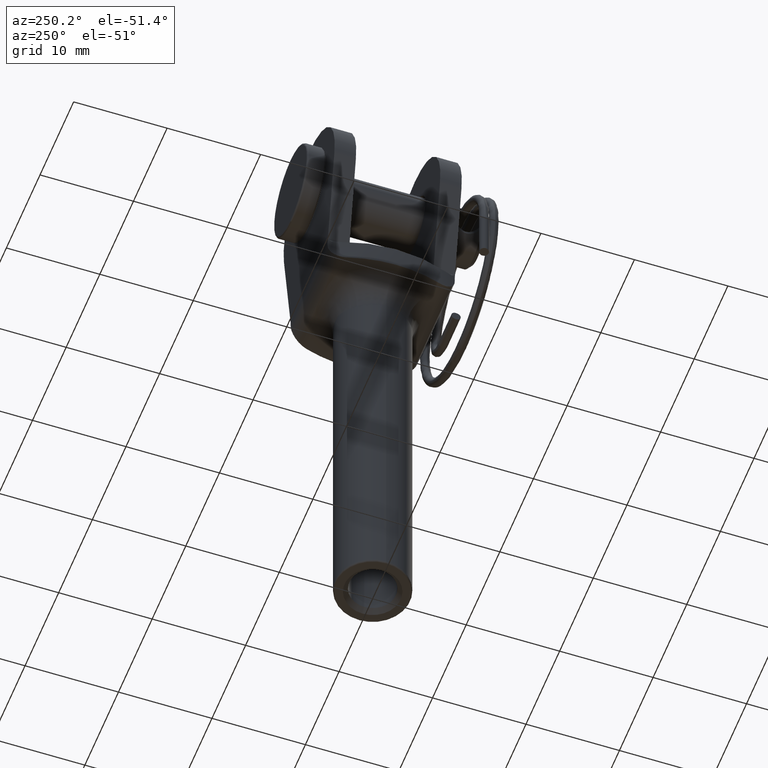
[diagram: clean part render]
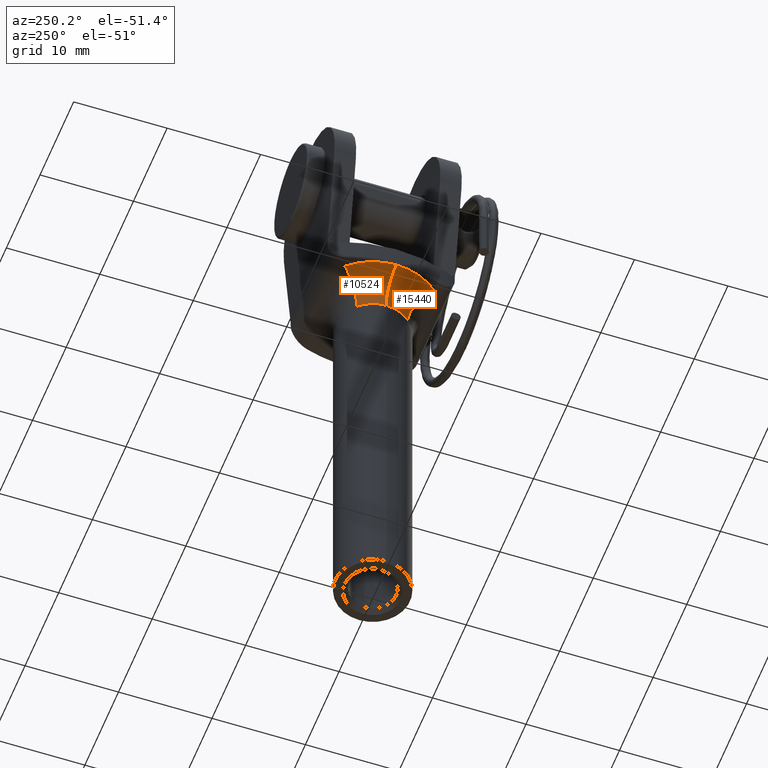
[diagram: same view with one multi-face feature highlighted, each face labeled with its STEP entity id]
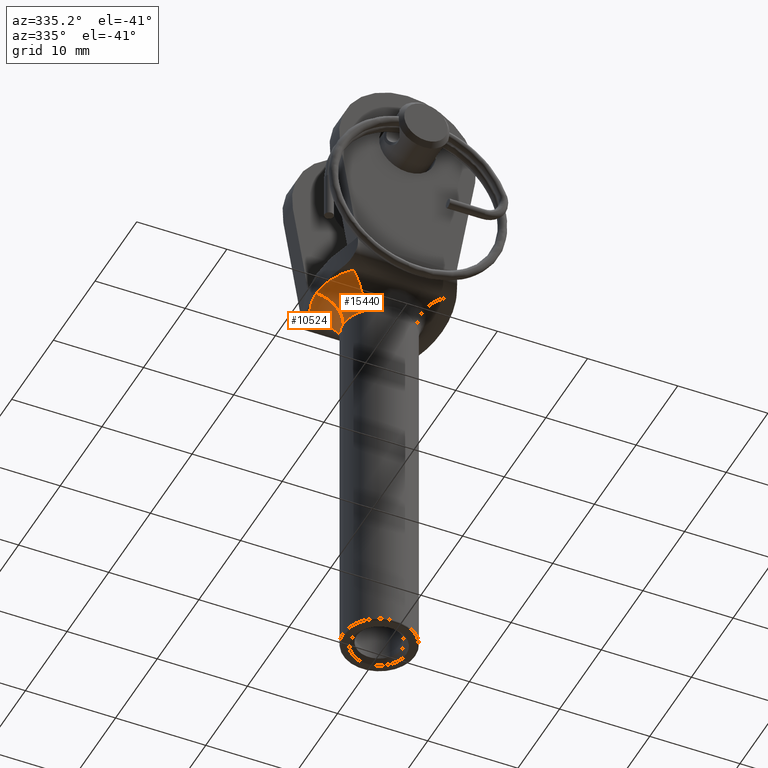
[diagram: same view with one multi-face feature highlighted, each face labeled with its STEP entity id]
A machine part, auxiliary view. The highlighted faces form ONE feature: a constant-radius fillet chain: 2 tangent blend faces with common blend radius 3 mm. The faces share edges in the B-rep.
A second angle (auxiliary view) of the same feature is appended — it is thin or edge-on in the first view.
Their STEP definitions:
[1] entity #10524 (Torus):
#1276 = AXIS2_PLACEMENT_3D ( 'NONE', #14137, #12699, #19155 ) ;
#1630 = FACE_OUTER_BOUND ( 'NONE', #11592, .T. ) ;
#2216 = CARTESIAN_POINT ( 'NONE',  ( 3.673940397442057400E-016, 0.0000000000000000000, -2.500000000000000000 ) ) ;
#3215 = CIRCLE ( 'NONE', #16683, 7.000000000000000000 ) ;
#3428 = CIRCLE ( 'NONE', #1276, 3.000000000000000000 ) ;
#3541 = AXIS2_PLACEMENT_3D ( 'NONE', #6651, #3808, #18713 ) ;
#3808 = DIRECTION ( 'NONE',  ( -1.224646799147353200E-016, 0.0000000000000000000, -1.000000000000000000 ) ) ;
#3839 = CARTESIAN_POINT ( 'NONE',  ( -4.000000000000000000, 4.898587196589412800E-016, -5.499999999999997300 ) ) ;
#4581 = CARTESIAN_POINT ( 'NONE',  ( -2.911483246367314100, 2.742857142857142900, -5.499999999999998200 ) ) ;
#4775 = ORIENTED_EDGE ( 'NONE', *, *, #17436, .F. ) ;
#5171 = DIRECTION ( 'NONE',  ( 1.224646799147353200E-016, -0.0000000000000000000, 1.000000000000000000 ) ) ;
#5758 = VERTEX_POINT ( 'NONE', #15797 ) ;
#5952 = EDGE_CURVE ( 'NONE', #15156, #12419, #15525, .T. ) ;
#6290 = VERTEX_POINT ( 'NONE', #3839 ) ;
#6651 = CARTESIAN_POINT ( 'NONE',  ( 0.0000000000000000000, 0.0000000000000000000, -5.499999999999998200 ) ) ;
#6678 = DIRECTION ( 'NONE',  ( -1.000000000000000000, 0.0000000000000000000, 2.168404344971008900E-016 ) ) ;
#8172 = DIRECTION ( 'NONE',  ( -1.224646799147353200E-016, 0.0000000000000000000, -1.000000000000000000 ) ) ;
#8349 = CIRCLE ( 'NONE', #17383, 4.000000000000000000 ) ;
#9623 = CARTESIAN_POINT ( 'NONE',  ( -5.095095681142799600, 4.799999999999999800, -2.499999999999999600 ) ) ;
#9994 = EDGE_CURVE ( 'NONE', #6290, #12419, #8349, .T. ) ;
#10524 = ADVANCED_FACE ( 'NONE', ( #1630 ), #19711, .F. ) ;
#11592 = EDGE_LOOP ( 'NONE', ( #12990, #12584, #4775, #13604 ) ) ;
#11599 = DIRECTION ( 'NONE',  ( 0.6857142857142857200, 0.7278708115918285400, -0.0000000000000000000 ) ) ;
#11969 = AXIS2_PLACEMENT_3D ( 'NONE', #17571, #11599, #19436 ) ;
#12419 = VERTEX_POINT ( 'NONE', #4581 ) ;
#12584 = ORIENTED_EDGE ( 'NONE', *, *, #19316, .T. ) ;
#12699 = DIRECTION ( 'NONE',  ( -0.0000000000000000000, -1.000000000000000000, 0.0000000000000000000 ) ) ;
#12910 = DIRECTION ( 'NONE',  ( -1.000000000000000000, -1.776356839400250500E-015, 1.239088197126290800E-016 ) ) ;
#12990 = ORIENTED_EDGE ( 'NONE', *, *, #9994, .F. ) ;
#13604 = ORIENTED_EDGE ( 'NONE', *, *, #5952, .T. ) ;
#14137 = CARTESIAN_POINT ( 'NONE',  ( -7.000000000000000000, 0.0000000000000000000, -5.499999999999997300 ) ) ;
#15156 = VERTEX_POINT ( 'NONE', #9623 ) ;
#15525 = CIRCLE ( 'NONE', #11969, 3.000000000000000400 ) ;
#15797 = CARTESIAN_POINT ( 'NONE',  ( -7.000000000000000900, 0.0000000000000000000, -2.499999999999999100 ) ) ;
#15838 = CARTESIAN_POINT ( 'NONE',  ( 0.0000000000000000000, 0.0000000000000000000, -5.499999999999998200 ) ) ;
#16683 = AXIS2_PLACEMENT_3D ( 'NONE', #2216, #5171, #12910 ) ;
#17383 = AXIS2_PLACEMENT_3D ( 'NONE', #15838, #8172, #6678 ) ;
#17436 = EDGE_CURVE ( 'NONE', #15156, #5758, #3215, .T. ) ;
#17571 = CARTESIAN_POINT ( 'NONE',  ( -5.095095681142799600, 4.799999999999999800, -5.500000000000000000 ) ) ;
#18713 = DIRECTION ( 'NONE',  ( -1.000000000000000000, 0.0000000000000000000, 1.224646799147353200E-016 ) ) ;
#19155 = DIRECTION ( 'NONE',  ( 0.0000000000000000000, 0.0000000000000000000, -1.000000000000000000 ) ) ;
#19316 = EDGE_CURVE ( 'NONE', #6290, #5758, #3428, .T. ) ;
#19436 = DIRECTION ( 'NONE',  ( -0.7278708115918285400, 0.6857142857142857200, 0.0000000000000000000 ) ) ;
#19711 = TOROIDAL_SURFACE ( 'NONE', #3541, 7.000000000000000000, 3.000000000000000000 ) ;
[2] entity #15440 (Torus):
#945 = CARTESIAN_POINT ( 'NONE',  ( 3.673940397442057400E-016, 0.0000000000000000000, -2.500000000000000000 ) ) ;
#1007 = AXIS2_PLACEMENT_3D ( 'NONE', #945, #2618, #4055 ) ;
#1276 = AXIS2_PLACEMENT_3D ( 'NONE', #14137, #12699, #19155 ) ;
#1855 = ORIENTED_EDGE ( 'NONE', *, *, #19316, .F. ) ;
#2618 = DIRECTION ( 'NONE',  ( 1.224646799147353200E-016, -0.0000000000000000000, 1.000000000000000000 ) ) ;
#2955 = ORIENTED_EDGE ( 'NONE', *, *, #16849, .F. ) ;
#3428 = CIRCLE ( 'NONE', #1276, 3.000000000000000000 ) ;
#3839 = CARTESIAN_POINT ( 'NONE',  ( -4.000000000000000000, 4.898587196589412800E-016, -5.499999999999997300 ) ) ;
#4055 = DIRECTION ( 'NONE',  ( -1.000000000000000000, 0.0000000000000000000, 1.239088197126290800E-016 ) ) ;
#4161 = DIRECTION ( 'NONE',  ( -0.6857142857142857200, 0.7278708115918285400, 0.0000000000000000000 ) ) ;
#4958 = ORIENTED_EDGE ( 'NONE', *, *, #13386, .F. ) ;
#5758 = VERTEX_POINT ( 'NONE', #15797 ) ;
#6290 = VERTEX_POINT ( 'NONE', #3839 ) ;
#6850 = DIRECTION ( 'NONE',  ( -1.000000000000000000, 0.0000000000000000000, 1.224646799147353200E-016 ) ) ;
#7265 = AXIS2_PLACEMENT_3D ( 'NONE', #12867, #11421, #6850 ) ;
#9105 = ORIENTED_EDGE ( 'NONE', *, *, #17074, .F. ) ;
#10899 = CARTESIAN_POINT ( 'NONE',  ( -5.095095681142799600, -4.799999999999999800, -2.499999999999999100 ) ) ;
#10918 = CIRCLE ( 'NONE', #12509, 3.000000000000000400 ) ;
#11258 = AXIS2_PLACEMENT_3D ( 'NONE', #13094, #16042, #16107 ) ;
#11421 = DIRECTION ( 'NONE',  ( -1.224646799147353200E-016, 0.0000000000000000000, -1.000000000000000000 ) ) ;
#11988 = VERTEX_POINT ( 'NONE', #13888 ) ;
#12509 = AXIS2_PLACEMENT_3D ( 'NONE', #16281, #4161, #13388 ) ;
#12699 = DIRECTION ( 'NONE',  ( -0.0000000000000000000, -1.000000000000000000, 0.0000000000000000000 ) ) ;
#12867 = CARTESIAN_POINT ( 'NONE',  ( 0.0000000000000000000, 0.0000000000000000000, -5.499999999999998200 ) ) ;
#13094 = CARTESIAN_POINT ( 'NONE',  ( 0.0000000000000000000, 0.0000000000000000000, -5.499999999999998200 ) ) ;
#13386 = EDGE_CURVE ( 'NONE', #19697, #11988, #10918, .T. ) ;
#13388 = DIRECTION ( 'NONE',  ( -0.7278708115918285400, -0.6857142857142857200, 0.0000000000000000000 ) ) ;
#13888 = CARTESIAN_POINT ( 'NONE',  ( -2.911483246367314100, -2.742857142857142900, -5.499999999999998200 ) ) ;
#13925 = CIRCLE ( 'NONE', #1007, 7.000000000000000000 ) ;
#14137 = CARTESIAN_POINT ( 'NONE',  ( -7.000000000000000000, 0.0000000000000000000, -5.499999999999997300 ) ) ;
#15038 = EDGE_LOOP ( 'NONE', ( #1855, #2955, #4958, #9105 ) ) ;
#15440 = ADVANCED_FACE ( 'NONE', ( #17977 ), #15593, .F. ) ;
#15572 = CIRCLE ( 'NONE', #11258, 4.000000000000000000 ) ;
#15593 = TOROIDAL_SURFACE ( 'NONE', #7265, 7.000000000000000000, 3.000000000000000000 ) ;
#15797 = CARTESIAN_POINT ( 'NONE',  ( -7.000000000000000900, 0.0000000000000000000, -2.499999999999999100 ) ) ;
#16042 = DIRECTION ( 'NONE',  ( -1.224646799147353200E-016, 0.0000000000000000000, -1.000000000000000000 ) ) ;
#16107 = DIRECTION ( 'NONE',  ( -1.000000000000000000, 0.0000000000000000000, 2.168404344971008900E-016 ) ) ;
#16281 = CARTESIAN_POINT ( 'NONE',  ( -5.095095681142799600, -4.799999999999999800, -5.500000000000000000 ) ) ;
#16849 = EDGE_CURVE ( 'NONE', #11988, #6290, #15572, .T. ) ;
#17074 = EDGE_CURVE ( 'NONE', #5758, #19697, #13925, .T. ) ;
#17977 = FACE_OUTER_BOUND ( 'NONE', #15038, .T. ) ;
#19155 = DIRECTION ( 'NONE',  ( 0.0000000000000000000, 0.0000000000000000000, -1.000000000000000000 ) ) ;
#19316 = EDGE_CURVE ( 'NONE', #6290, #5758, #3428, .T. ) ;
#19697 = VERTEX_POINT ( 'NONE', #10899 ) ;